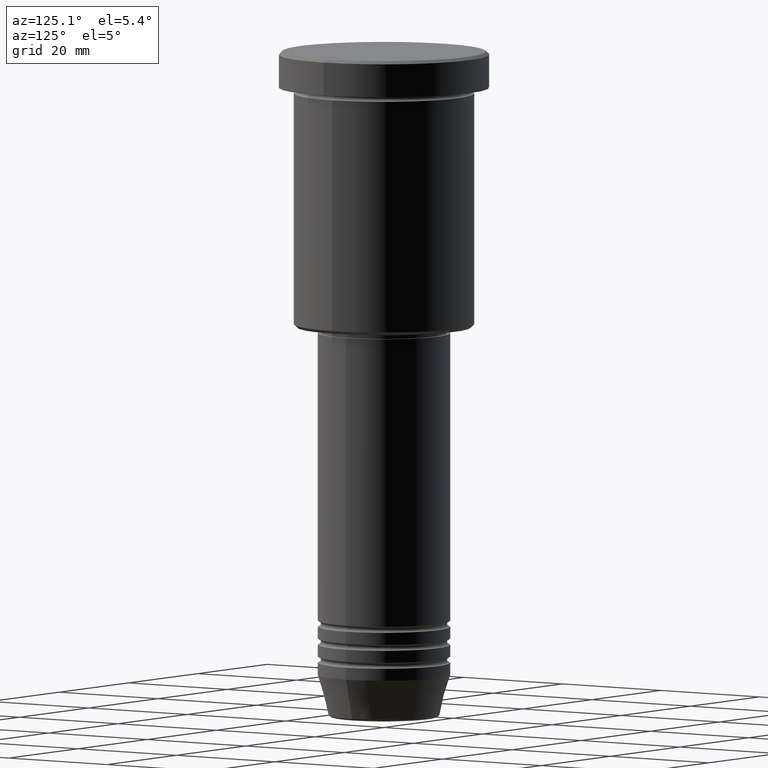
[diagram: clean part render]
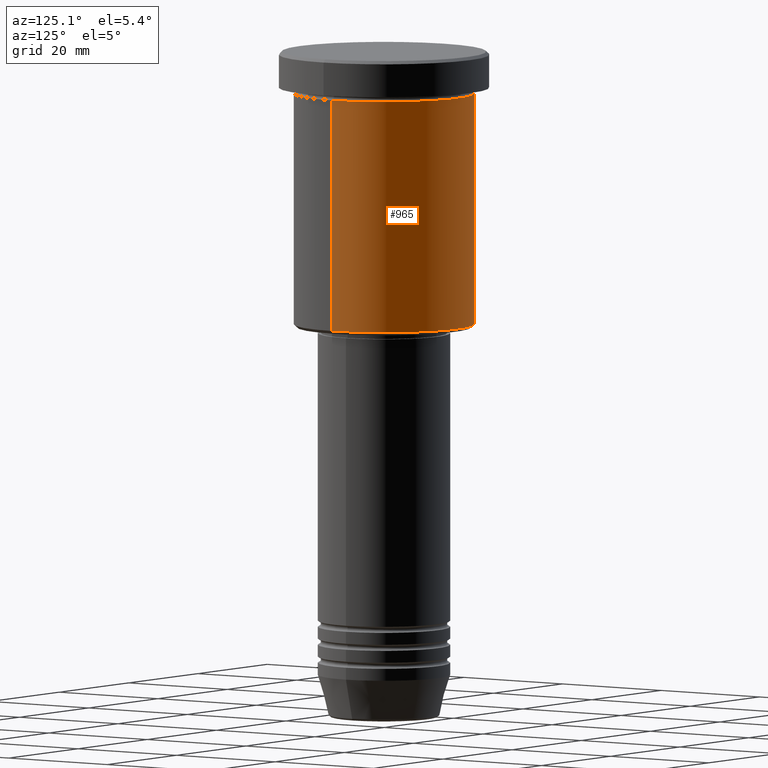
[diagram: same view with one face highlighted and labeled with its STEP entity id]
A machine part, auxiliary view. The second image highlights one B-rep face of the part: STEP entity #965.
In plain terms, the highlighted cylindrical surface (partial cylindrical patch) has radius 15 mm, axis along (-0, -0, 1).
Its self-contained STEP definition (entity closure, byte-faithful):
#136 = CARTESIAN_POINT ( 'NONE',  ( 15.00000000000000000, 0.000000000000000000, -45.50000000000001421 ) ) ;
#179 = DIRECTION ( 'NONE',  ( -0.000000000000000000, -0.000000000000000000, 1.000000000000000000 ) ) ;
#279 = ORIENTED_EDGE ( 'NONE', *, *, #492, .F. ) ;
#285 = VECTOR ( 'NONE', #474, 1000.000000000000000 ) ;
#300 = ORIENTED_EDGE ( 'NONE', *, *, #775, .T. ) ;
#304 = CYLINDRICAL_SURFACE ( 'NONE', #1081, 15.00000000000000000 ) ;
#355 = ORIENTED_EDGE ( 'NONE', *, *, #725, .T. ) ;
#357 = VERTEX_POINT ( 'NONE', #1170 ) ;
#390 = DIRECTION ( 'NONE',  ( -0.000000000000000000, -0.000000000000000000, 1.000000000000000000 ) ) ;
#462 = VERTEX_POINT ( 'NONE', #702 ) ;
#474 = DIRECTION ( 'NONE',  ( -0.000000000000000000, -0.000000000000000000, 1.000000000000000000 ) ) ;
#484 = AXIS2_PLACEMENT_3D ( 'NONE', #635, #179, #1017 ) ;
#488 = CARTESIAN_POINT ( 'NONE',  ( 15.00000000000000000, 0.000000000000000000, 0.000000000000000000 ) ) ;
#491 = DIRECTION ( 'NONE',  ( 1.000000000000000000, 0.000000000000000000, 0.000000000000000000 ) ) ;
#492 = EDGE_CURVE ( 'NONE', #525, #462, #917, .T. ) ;
#525 = VERTEX_POINT ( 'NONE', #136 ) ;
#545 = ORIENTED_EDGE ( 'NONE', *, *, #844, .F. ) ;
#565 = DIRECTION ( 'NONE',  ( -0.000000000000000000, -0.000000000000000000, 1.000000000000000000 ) ) ;
#607 = VERTEX_POINT ( 'NONE', #825 ) ;
#621 = LINE ( 'NONE', #723, #773 ) ;
#635 = CARTESIAN_POINT ( 'NONE',  ( 0.000000000000000000, 0.000000000000000000, -45.50000000000001421 ) ) ;
#679 = DIRECTION ( 'NONE',  ( 1.000000000000000000, 0.000000000000000000, 0.000000000000000000 ) ) ;
#702 = CARTESIAN_POINT ( 'NONE',  ( 15.00000000000000000, 0.000000000000000000, -6.999999999999995559 ) ) ;
#723 = CARTESIAN_POINT ( 'NONE',  ( -15.00000000000000000, 1.836970198721029589E-15, 0.000000000000000000 ) ) ;
#725 = EDGE_CURVE ( 'NONE', #525, #357, #1079, .T. ) ;
#756 = CARTESIAN_POINT ( 'NONE',  ( 0.000000000000000000, 0.000000000000000000, 0.000000000000000000 ) ) ;
#773 = VECTOR ( 'NONE', #986, 1000.000000000000000 ) ;
#775 = EDGE_CURVE ( 'NONE', #357, #607, #621, .T. ) ;
#825 = CARTESIAN_POINT ( 'NONE',  ( -15.00000000000000000, 1.836970198721029589E-15, -6.999999999999995559 ) ) ;
#844 = EDGE_CURVE ( 'NONE', #462, #607, #989, .T. ) ;
#917 = LINE ( 'NONE', #488, #285 ) ;
#965 = ADVANCED_FACE ( 'NONE', ( #1136 ), #304, .T. ) ;
#986 = DIRECTION ( 'NONE',  ( -0.000000000000000000, -0.000000000000000000, 1.000000000000000000 ) ) ;
#989 = CIRCLE ( 'NONE', #1046, 15.00000000000000000 ) ;
#1017 = DIRECTION ( 'NONE',  ( -1.000000000000000000, 0.000000000000000000, 0.000000000000000000 ) ) ;
#1046 = AXIS2_PLACEMENT_3D ( 'NONE', #1125, #565, #679 ) ;
#1079 = CIRCLE ( 'NONE', #484, 15.00000000000000000 ) ;
#1081 = AXIS2_PLACEMENT_3D ( 'NONE', #756, #390, #491 ) ;
#1110 = EDGE_LOOP ( 'NONE', ( #355, #300, #545, #279 ) ) ;
#1125 = CARTESIAN_POINT ( 'NONE',  ( 0.000000000000000000, 0.000000000000000000, -6.999999999999995559 ) ) ;
#1136 = FACE_OUTER_BOUND ( 'NONE', #1110, .T. ) ;
#1170 = CARTESIAN_POINT ( 'NONE',  ( -15.00000000000000000, 1.836970198721029589E-15, -45.50000000000001421 ) ) ;